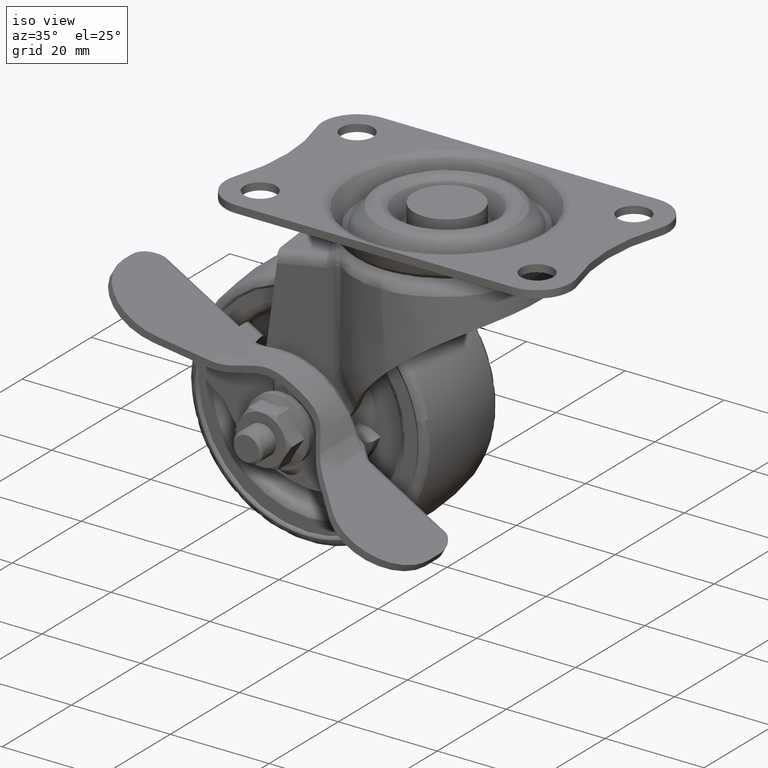
[diagram: clean part render]
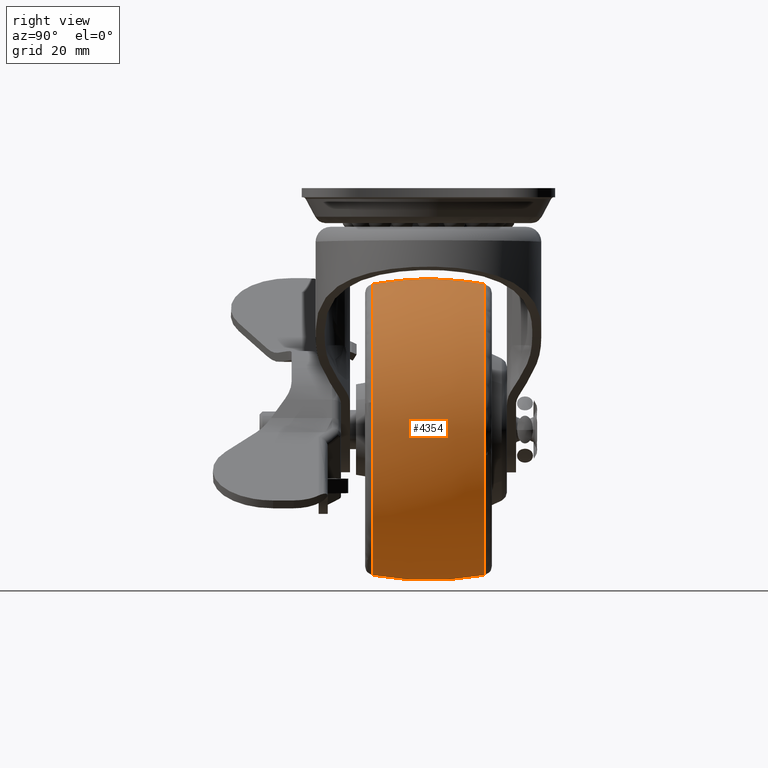
[diagram: tour spotlight — one face highlighted and labeled with its STEP entity id]
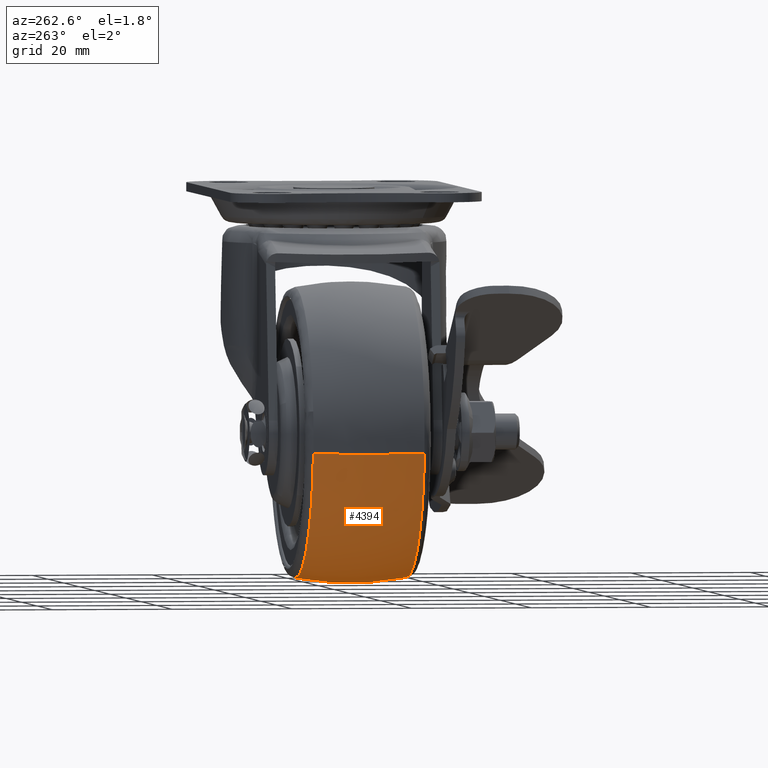
[diagram: tour spotlight — one face highlighted and labeled with its STEP entity id]
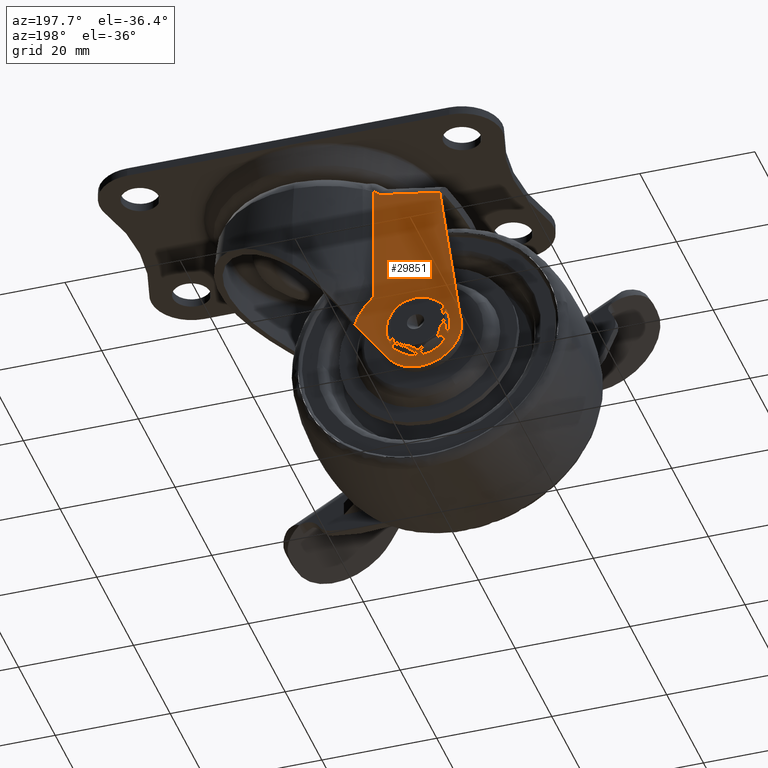
[diagram: tour spotlight — one face highlighted and labeled with its STEP entity id]
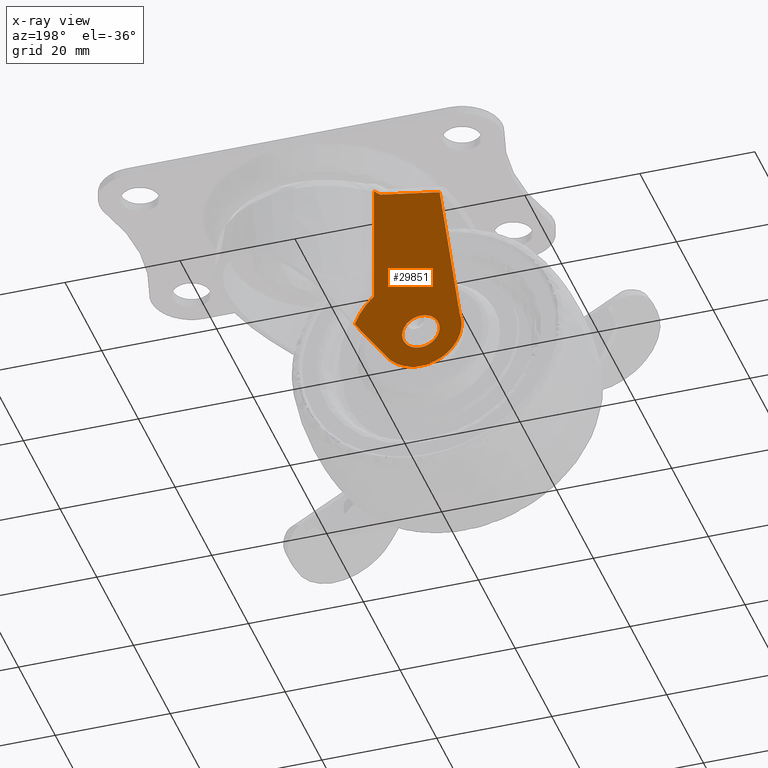
[diagram: x-ray of the same camera — body ghosted, this tour face saturated]
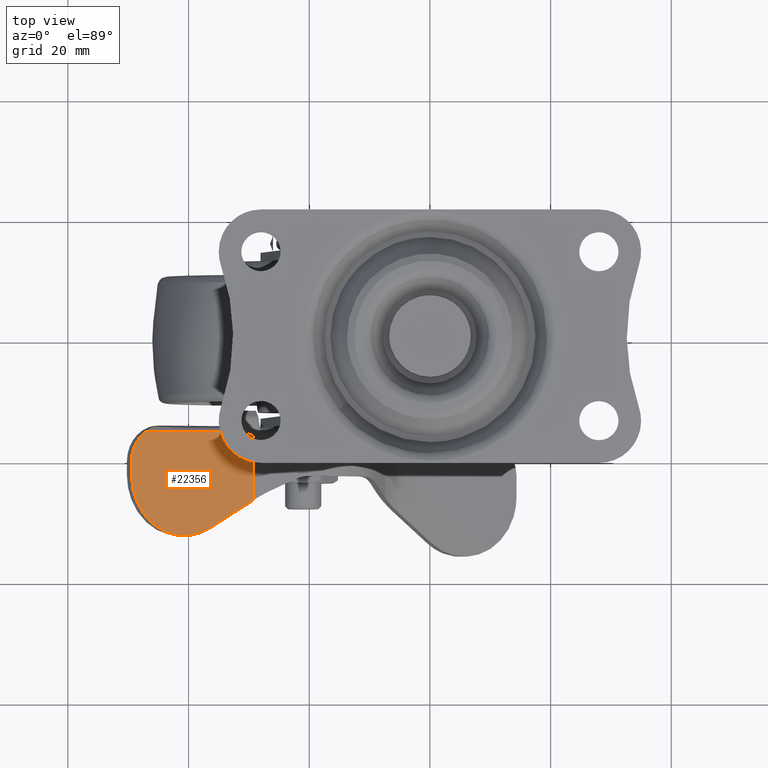
[diagram: tour spotlight — one face highlighted and labeled with its STEP entity id]
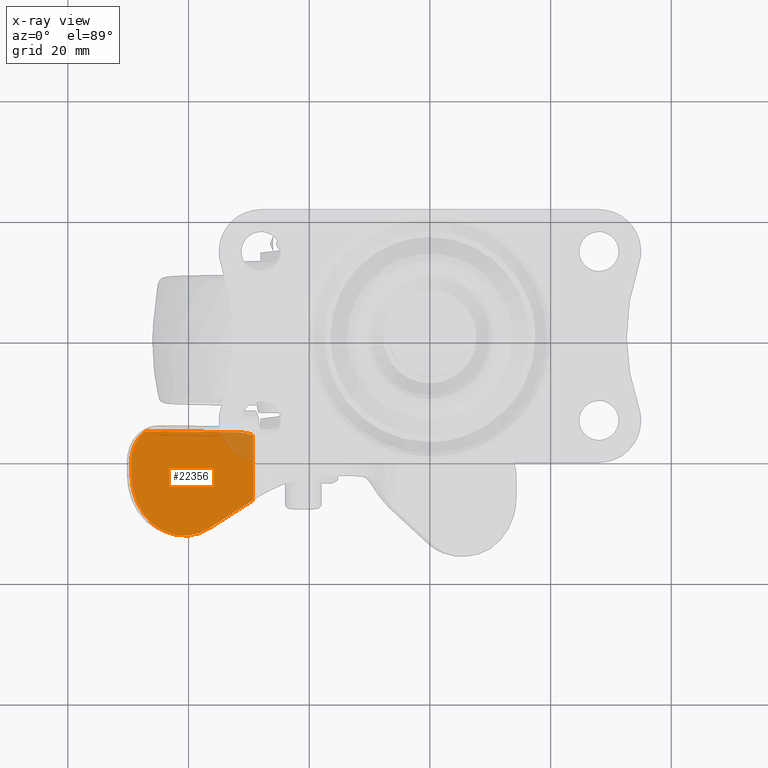
[diagram: x-ray of the same camera — body ghosted, this tour face saturated]
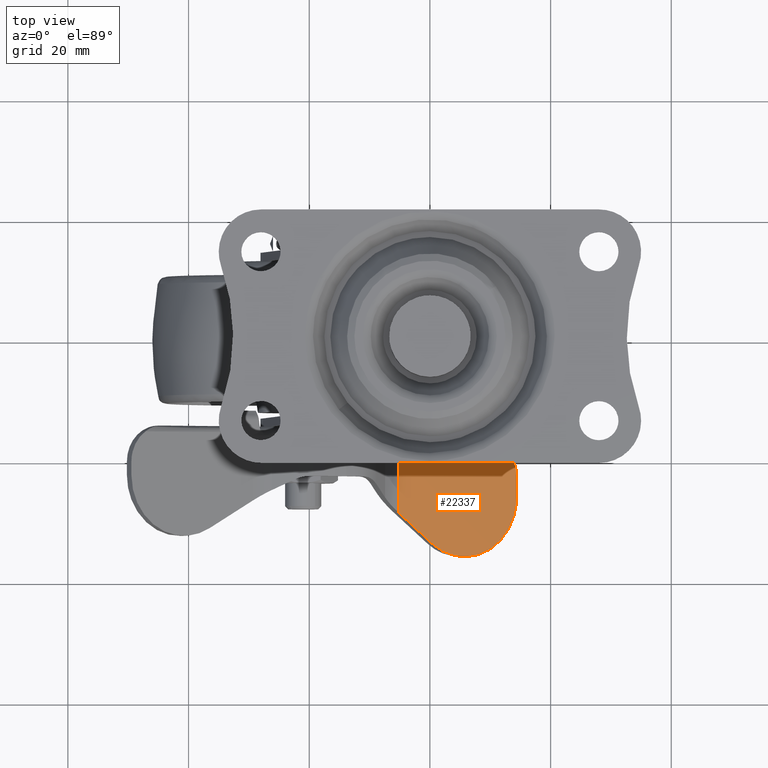
[diagram: tour spotlight — one face highlighted and labeled with its STEP entity id]
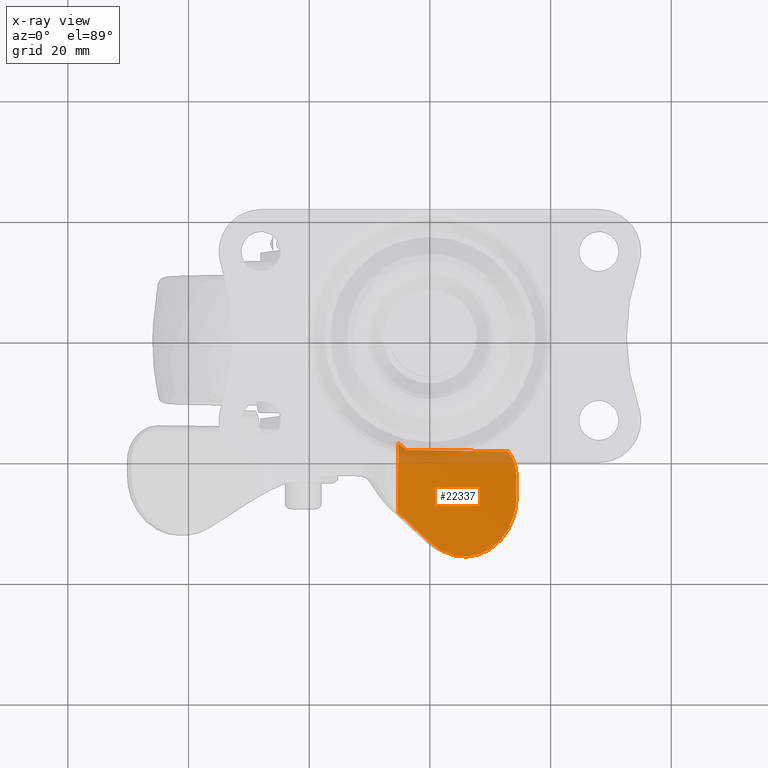
[diagram: x-ray of the same camera — body ghosted, this tour face saturated]
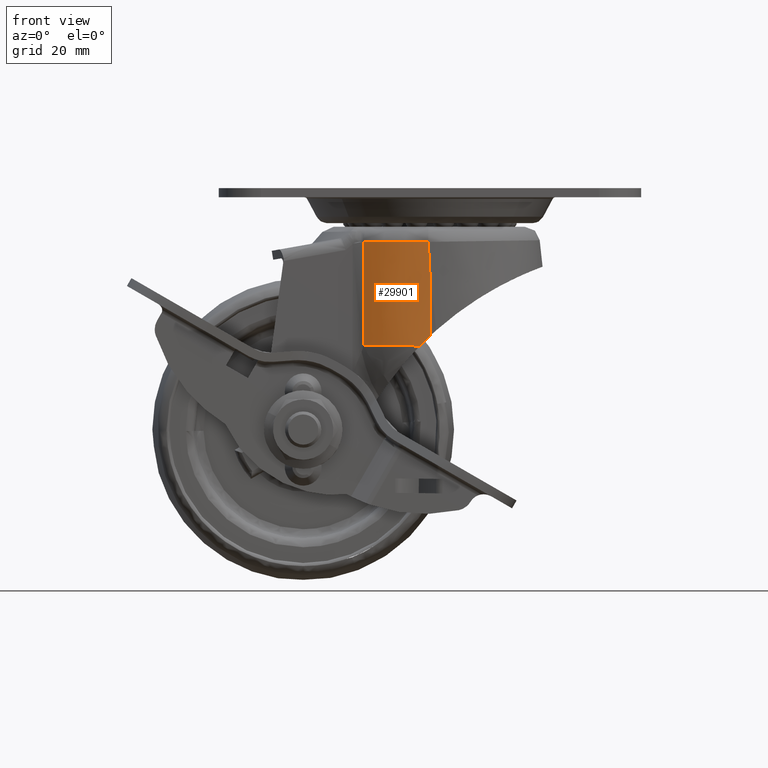
[diagram: tour spotlight — one face highlighted and labeled with its STEP entity id]
A machine part: a face-by-face anatomy tour. The part has 524 B-rep faces; the first image is the clean iso view, then the 6 largest visible faces are spotlighted one at a time (largest first), each with its STEP entity span.

Face 1 — right view, entity #4354. In plain terms, the highlighted face is a freeform B-spline surface patch.
Definition (entity closure, byte-faithful):
#3337=CARTESIAN_POINT('',(2.704144052375738,-9.278349222293961,-33.978192687146048));
#3338=VERTEX_POINT('',#3337);
#3350=CARTESIAN_POINT('',(-21.0,-9.278350515463950,-14.368419405516850));
#3351=VERTEX_POINT('',#3350);
#3352=CARTESIAN_POINT('',(-21.0,-9.278350515463950,-14.368419405516850));
#3353=CARTESIAN_POINT('',(-20.044467272588388,-9.278350515465275,-14.368399423088331));
#3354=CARTESIAN_POINT('',(-18.003096625656308,-9.278350507457745,-14.489826445423770));
#3355=CARTESIAN_POINT('',(-14.366754580408990,-9.278350462277491,-15.174944596951290));
#3356=CARTESIAN_POINT('',(-10.684020337171580,-9.278350371871333,-16.545874870843811));
#3357=CARTESIAN_POINT('',(-7.418698539687314,-9.278350245146458,-18.467541645621509));
#3358=CARTESIAN_POINT('',(-5.157446204921402,-9.278350128417833,-20.237633096223220));
#3359=CARTESIAN_POINT('',(-3.158633204722226,-9.278350000747919,-22.173628538645019));
#3360=CARTESIAN_POINT('',(-1.472478167787685,-9.278349865462449,-24.225114948850131));
#3361=CARTESIAN_POINT('',(0.074442272997237,-9.278349706013119,-26.643021616561779));
#3362=CARTESIAN_POINT('',(1.615082526464821,-9.278349500176482,-29.764351656796830));
#3363=CARTESIAN_POINT('',(2.387017542734677,-9.278349332026135,-32.314200839632711));
#3364=CARTESIAN_POINT('',(2.704144052375738,-9.278349222293961,-33.978192687146048));
#3365=B_SPLINE_CURVE_WITH_KNOTS('',3,(#3352,#3353,#3354,#3355,#3356,#3357,#3358,#3359,#3360,#3361,#3362,#3363,#3364),.UNSPECIFIED.,.F.,.U.,(4,1,1,1,1,1,1,1,1,1,4),(0.000000056603142,2.866600836168132,6.124151438689776,11.075629142267420,14.593768498494240,17.460337595137378,19.675493739285859,22.933031962942351,25.408763129087770,28.275394851605171,33.357142903078852),.UNSPECIFIED.);
#3366=EDGE_CURVE('',#3351,#3338,#3365,.T.);
#3368=CARTESIAN_POINT('',(-44.970181180100369,-9.278366535203702,-41.286296856043322));
#3369=VERTEX_POINT('',#3368);
#3370=CARTESIAN_POINT('',(-44.970181180100369,-9.278366535203702,-41.286296856043322));
#3371=CARTESIAN_POINT('',(-45.086464678209978,-9.278366237609165,-40.286175053471197));
#3372=CARTESIAN_POINT('',(-45.193586715744793,-9.278365600503241,-38.271355217097970));
#3373=CARTESIAN_POINT('',(-44.994869099337947,-9.278364627695899,-35.517505437287092));
#3374=CARTESIAN_POINT('',(-44.479940986737603,-9.278363540132103,-32.699509196135793));
#3375=CARTESIAN_POINT('',(-43.720637570482992,-9.278362489327154,-30.209870478199019));
#3376=CARTESIAN_POINT('',(-42.469251962491469,-9.278361167201357,-27.341014198379199));
#3377=CARTESIAN_POINT('',(-40.621823530992494,-9.278359589845918,-24.233987171294139));
#3378=CARTESIAN_POINT('',(-38.109967714867047,-9.278357885912769,-21.337287618061300));
#3379=CARTESIAN_POINT('',(-35.263669237798652,-9.278356251634069,-18.948254913957690));
#3380=CARTESIAN_POINT('',(-32.573884114485679,-9.278354888644159,-17.237168954772262));
#3381=CARTESIAN_POINT('',(-29.095402103490080,-9.278353333392124,-15.649177524383481));
#3382=CARTESIAN_POINT('',(-25.239407540766830,-9.278351848357868,-14.608907144700209));
#3383=CARTESIAN_POINT('',(-22.324800655118480,-9.278350907022643,-14.368353657697790));
#3384=CARTESIAN_POINT('',(-21.0,-9.278350515463950,-14.368419405516850));
#3385=B_SPLINE_CURVE_WITH_KNOTS('',3,(#3370,#3371,#3372,#3373,#3374,#3375,#3376,#3377,#3378,#3379,#3380,#3381,#3382,#3383,#3384),.UNSPECIFIED.,.F.,.U.,(4,1,1,1,1,1,1,1,1,1,1,1,4),(0.000000086311957,3.020580328582454,6.041166328599033,8.266850937025851,11.605406034270080,13.831116897752221,17.646573397101012,22.415892262708262,25.277488585883120,28.775026921100210,31.954602780274310,36.723978255879537,40.698395387692841),.UNSPECIFIED.);
#3386=EDGE_CURVE('',#3369,#3351,#3385,.T.);
#3388=CARTESIAN_POINT('',(-21.0,-9.278347266066543,-62.631581208121787));
#3389=VERTEX_POINT('',#3388);
#3405=CARTESIAN_POINT('',(-12.410333541811500,-9.278347376053606,-61.051071810461877));
#3406=VERTEX_POINT('',#3405);
#3407=CARTESIAN_POINT('',(-12.410333541811500,-9.278347376053606,-61.051071810461877));
#3408=CARTESIAN_POINT('',(-13.350718764560080,-9.278347351126699,-61.409270438024848));
#3409=CARTESIAN_POINT('',(-16.151660055491622,-9.278347290530391,-62.280036533482381));
#3410=CARTESIAN_POINT('',(-19.078825273151718,-9.278347266031625,-62.632083184399583));
#3411=CARTESIAN_POINT('',(-21.0,-9.278347266066543,-62.631581208121787));
#3412=B_SPLINE_CURVE_WITH_KNOTS('',3,(#3407,#3408,#3409,#3410,#3411),.UNSPECIFIED.,.F.,.U.,(4,1,4),(4.134744E-009,3.018903499036183,8.782261329976219),.UNSPECIFIED.);
#3413=EDGE_CURVE('',#3406,#3389,#3412,.T.);
#3462=CARTESIAN_POINT('',(2.704144052375738,-9.278349222293961,-33.978192687146048));
#3463=CARTESIAN_POINT('',(3.041317276671661,-9.278349099340632,-35.743931030891659));
#3464=CARTESIAN_POINT('',(3.240404526290693,-9.278348919191775,-38.339226977334881));
#3465=CARTESIAN_POINT('',(2.923418580211030,-9.278348659231574,-42.101055562990943));
#3466=CARTESIAN_POINT('',(2.219897017018396,-9.278348428110574,-45.457240407175178));
#3467=CARTESIAN_POINT('',(1.025352297021724,-9.278348217206050,-48.535161207344487));
#3468=CARTESIAN_POINT('',(-0.534363208944728,-9.278348022923817,-51.383221689933833));
#3469=CARTESIAN_POINT('',(-2.177453048983648,-9.278347864183305,-53.720475943810428));
#3470=CARTESIAN_POINT('',(-4.181991067672958,-9.278347718694384,-55.876428189894263));
#3471=CARTESIAN_POINT('',(-6.445310984672200,-9.278347588272895,-57.822022598447923));
#3472=CARTESIAN_POINT('',(-9.075271696456415,-9.278347471312506,-59.583431417953641));
#3473=CARTESIAN_POINT('',(-11.263080215009010,-9.278347404115918,-60.614157770428157));
#3474=CARTESIAN_POINT('',(-12.410333541811500,-9.278347376053606,-61.051071810461877));
#3475=B_SPLINE_CURVE_WITH_KNOTS('',3,(#3462,#3463,#3464,#3465,#3466,#3467,#3468,#3469,#3470,#3471,#3472,#3473,#3474),.UNSPECIFIED.,.F.,.U.,(4,1,1,1,1,1,1,1,1,1,4),(0.000000057449348,5.392819920410673,7.760407094592630,11.311797131667049,15.652382885799121,17.625294935518419,21.045156031820952,24.201955572156582,26.438013096856729,29.989391261382210,33.672286704211359),.UNSPECIFIED.);
#3476=EDGE_CURVE('',#3338,#3406,#3475,.T.);
#3505=CARTESIAN_POINT('',(2.759096477785932,9.278345521659144,-42.723570209472932));
#3506=VERTEX_POINT('',#3505);
#3507=CARTESIAN_POINT('',(-21.0,9.278342933115724,-62.631582026384251));
#3508=VERTEX_POINT('',#3507);
#3509=CARTESIAN_POINT('',(2.759096477785932,9.278345521659144,-42.723570209472932));
#3510=CARTESIAN_POINT('',(2.414363391703058,9.278345269153899,-44.665541782878442));
#3511=CARTESIAN_POINT('',(1.413533074392419,9.278344846634393,-47.915061175569349));
#3512=CARTESIAN_POINT('',(-1.027440340045892,9.278344276934060,-52.296522531376127));
#3513=CARTESIAN_POINT('',(-3.626735504457496,9.278343872633347,-55.405924140521932));
#3514=CARTESIAN_POINT('',(-6.155656176634087,9.278343589440318,-57.583909454613732));
#3515=CARTESIAN_POINT('',(-8.645681764778603,9.278343365632663,-59.305174435073468));
#3516=CARTESIAN_POINT('',(-11.493853273559990,9.278343173069201,-60.786142926758757));
#3517=CARTESIAN_POINT('',(-14.826534150404211,9.278343027455312,-61.906035372008802));
#3518=CARTESIAN_POINT('',(-17.975844416003959,9.278342949564376,-62.505074421561538));
#3519=CARTESIAN_POINT('',(-19.991948947181509,9.278342933112532,-62.631613506327533));
#3520=CARTESIAN_POINT('',(-21.0,9.278342933115724,-62.631582026384251));
#3521=B_SPLINE_CURVE_WITH_KNOTS('',3,(#3509,#3510,#3511,#3512,#3513,#3514,#3515,#3516,#3517,#3518,#3519,#3520),.UNSPECIFIED.,.F.,.U.,(4,1,1,1,1,1,1,1,1,4),(0.000000057256869,5.916855035315784,10.124428715158871,14.989419822137281,18.013548622610880,20.117323160027070,24.061923449801061,27.612063182291649,30.636251624025370,33.660405015221031),.UNSPECIFIED.);
#3522=EDGE_CURVE('',#3506,#3508,#3521,.T.);
#3524=CARTESIAN_POINT('',(-44.970183330552118,9.278355115245670,-41.286297034111833));
#3525=VERTEX_POINT('',#3524);
#3543=CARTESIAN_POINT('',(-44.759092877287898,9.278354426551987,-34.276417072923678));
#3544=VERTEX_POINT('',#3543);
#3545=CARTESIAN_POINT('',(-44.970183330552118,9.278355115245670,-41.286297034111833));
#3546=CARTESIAN_POINT('',(-45.097203903021153,9.278355022285615,-40.193970872225393));
#3547=CARTESIAN_POINT('',(-45.208446770909049,9.278354807858337,-37.845129806377692));
#3548=CARTESIAN_POINT('',(-44.977310764743102,9.278354563379658,-35.503476536537427));
#3549=CARTESIAN_POINT('',(-44.759092877287898,9.278354426551987,-34.276417072923678));
#3550=B_SPLINE_CURVE_WITH_KNOTS('',3,(#3545,#3546,#3547,#3548,#3549),.UNSPECIFIED.,.F.,.U.,(4,1,4),(1.924371E-009,3.299064269663592,7.037999073451804),.UNSPECIFIED.);
#3551=EDGE_CURVE('',#3525,#3544,#3550,.T.);
#3640=CARTESIAN_POINT('',(-21.0,9.278350515463870,-14.368419405516850));
#3641=VERTEX_POINT('',#3640);
#3642=CARTESIAN_POINT('',(-21.0,9.278350515463870,-14.368419405516850));
#3643=CARTESIAN_POINT('',(-19.188788587890659,9.278350541425967,-14.368088750070360));
#3644=CARTESIAN_POINT('',(-16.444740097442288,9.278350522211465,-14.678850489556190));
#3645=CARTESIAN_POINT('',(-12.855206390980570,9.278350377046300,-15.723488641555150));
#3646=CARTESIAN_POINT('',(-10.325599722272541,9.278350210605790,-16.800656168095131));
#3647=CARTESIAN_POINT('',(-7.408201191073819,9.278349941691349,-18.452093750207300));
#3648=CARTESIAN_POINT('',(-4.624630409048312,9.278349573581481,-20.620717371127611));
#3649=CARTESIAN_POINT('',(-2.208339196485671,9.278349112111359,-23.257755953251539));
#3650=CARTESIAN_POINT('',(-0.335781954438647,9.278348640852641,-25.905500340080170));
#3651=CARTESIAN_POINT('',(1.283697483088194,9.278348087291535,-28.971553195050092));
#3652=CARTESIAN_POINT('',(2.411261280025404,9.278347475123182,-32.311787881297739));
#3653=CARTESIAN_POINT('',(2.999181492593903,9.278346883510952,-35.501713141359403));
#3654=CARTESIAN_POINT('',(3.221366934726062,9.278346257269723,-38.847934748393193));
#3655=CARTESIAN_POINT('',(3.018625339629414,9.278345799801743,-41.264591207978071));
#3656=CARTESIAN_POINT('',(2.759096477785932,9.278345521659144,-42.723570209472932));
#3657=B_SPLINE_CURVE_WITH_KNOTS('',3,(#3642,#3643,#3644,#3645,#3646,#3647,#3648,#3649,#3650,#3651,#3652,#3653,#3654,#3655,#3656),.UNSPECIFIED.,.F.,.U.,(4,1,1,1,1,1,1,1,1,1,1,1,4),(0.000000090873982,5.433541149917254,8.232666424341936,11.196444952601279,13.666264547258949,18.276589631907100,21.734257466979219,24.368687800939171,27.991101870845540,32.107450665927182,34.906578468674773,37.705705199965429,42.151316158055010),.UNSPECIFIED.);
#3658=EDGE_CURVE('',#3641,#3506,#3657,.T.);
#3697=CARTESIAN_POINT('',(-44.759092877287898,9.278354426551987,-34.276417072923678));
#3698=CARTESIAN_POINT('',(-44.513741403454837,9.278354274308228,-32.895524602385159));
#3699=CARTESIAN_POINT('',(-43.884213649116113,9.278353998521810,-30.559113027670879));
#3700=CARTESIAN_POINT('',(-42.580024500858237,9.278353604559316,-27.582612422960729));
#3701=CARTESIAN_POINT('',(-40.923604734118307,9.278353193273935,-24.738198106979709));
#3702=CARTESIAN_POINT('',(-38.630977056956709,9.278352722737312,-21.838551582638111));
#3703=CARTESIAN_POINT('',(-35.699265350758758,9.278352226903154,-19.243002176901811));
#3704=CARTESIAN_POINT('',(-33.040394588185812,9.278351838305378,-17.530919710810409));
#3705=CARTESIAN_POINT('',(-30.449966585172561,9.278351495345460,-16.237339062257458));
#3706=CARTESIAN_POINT('',(-28.054925174739260,9.278351209205100,-15.366547361174311));
#3707=CARTESIAN_POINT('',(-24.769186528500079,9.278350855710263,-14.582315104123690));
#3708=CARTESIAN_POINT('',(-22.534017457321109,9.278350645637087,-14.368233660450670));
#3709=CARTESIAN_POINT('',(-21.0,9.278350515463870,-14.368419405516850));
#3710=B_SPLINE_CURVE_WITH_KNOTS('',3,(#3697,#3698,#3699,#3700,#3701,#3702,#3703,#3704,#3705,#3706,#3707,#3708,#3709),.UNSPECIFIED.,.F.,.U.,(4,1,1,1,1,1,1,1,1,1,4),(0.000000057324932,4.207541843063844,7.231723763356364,9.729960257396712,14.069013187969031,18.276503312447630,21.432193854902280,23.535970624092549,26.954614485566911,29.058391254755811,33.660390050188219),.UNSPECIFIED.);
#3711=EDGE_CURVE('',#3544,#3641,#3710,.T.);
#4274=CARTESIAN_POINT('',(-44.785933881755348,10.211752448262725,-41.264916695423388));
#4275=CARTESIAN_POINT('',(-45.832791040827090,5.160260522515189,-41.386605120659475));
#4276=CARTESIAN_POINT('',(-45.832791040827097,-2.479828E-015,-41.386605120659482));
#4277=CARTESIAN_POINT('',(-45.832791040827097,-5.160265243526086,-41.386605120659496));
#4278=CARTESIAN_POINT('',(-44.785931986447999,-10.211761593851614,-41.264916475109672));
#4279=CARTESIAN_POINT('',(-44.946093939510646,10.211752448262722,-39.887097048787659));
#4280=CARTESIAN_POINT('',(-46.000000000000007,5.160260522515187,-39.948145418091542));
#4281=CARTESIAN_POINT('',(-45.999999999999993,-2.479828E-015,-39.948145418091542));
#4282=CARTESIAN_POINT('',(-45.999999999999993,-5.160265243526085,-39.948145418091535));
#4283=CARTESIAN_POINT('',(-44.946092031441466,-10.211761593851611,-39.887096938261202));
#4284=CARTESIAN_POINT('',(-44.946093939510654,10.211752448262724,-38.500000000000007));
#4285=CARTESIAN_POINT('',(-46.0,5.160260522515188,-38.500000000000000));
#4286=CARTESIAN_POINT('',(-46.0,-2.479828E-015,-38.500000000000000));
#4287=CARTESIAN_POINT('',(-45.999999999999993,-5.160265243526085,-38.500000000000000));
#4288=CARTESIAN_POINT('',(-44.946092031441445,-10.211761593851614,-38.499999999999993));
#4289=CARTESIAN_POINT('',(-44.946093939510646,10.211752448262725,-14.553906060489355));
#4290=CARTESIAN_POINT('',(-45.999999999999993,5.160260522515190,-13.499999999999995));
#4291=CARTESIAN_POINT('',(-46.000000000000007,-2.479828E-015,-13.499999999999995));
#4292=CARTESIAN_POINT('',(-45.999999999999986,-5.160265243526085,-13.499999999999993));
#4293=CARTESIAN_POINT('',(-44.946092031441452,-10.211761593851614,-14.553907968558534));
#4294=CARTESIAN_POINT('',(-20.999999999999993,10.211752448262724,-14.553906060489364));
#4295=CARTESIAN_POINT('',(-20.999999999999993,5.160260522515188,-13.500000000000004));
#4296=CARTESIAN_POINT('',(-21.0,-2.479828E-015,-13.500000000000000));
#4297=CARTESIAN_POINT('',(-21.000000000000004,-5.160265243526085,-13.499999999999996));
#4298=CARTESIAN_POINT('',(-20.999999999999996,-10.211761593851614,-14.553907968558537));
#4299=CARTESIAN_POINT('',(2.946093939510643,10.211752448262725,-14.553906060489355));
#4300=CARTESIAN_POINT('',(4.000000000000002,5.160260522515190,-13.499999999999995));
#4301=CARTESIAN_POINT('',(4.000000000000003,-2.479828E-015,-13.499999999999995));
#4302=CARTESIAN_POINT('',(4.000000000000002,-5.160265243526085,-13.499999999999993));
#4303=CARTESIAN_POINT('',(2.946092031441461,-10.211761593851614,-14.553907968558537));
#4304=CARTESIAN_POINT('',(2.946093939510639,10.211752448262724,-38.500000000000007));
#4305=CARTESIAN_POINT('',(4.000000000000000,5.160260522515188,-38.500000000000000));
#4306=CARTESIAN_POINT('',(4.0,-2.479828E-015,-38.500000000000000));
#4307=CARTESIAN_POINT('',(4.000000000000001,-5.160265243526085,-38.500000000000000));
#4308=CARTESIAN_POINT('',(2.946092031441459,-10.211761593851614,-38.499999999999993));
#4309=CARTESIAN_POINT('',(2.946093939510643,10.211752448262725,-62.446093939510654));
#4310=CARTESIAN_POINT('',(4.000000000000002,5.160260522515190,-63.500000000000000));
#4311=CARTESIAN_POINT('',(4.000000000000003,-2.479828E-015,-63.499999999999993));
#4312=CARTESIAN_POINT('',(4.000000000000002,-5.160265243526085,-63.499999999999986));
#4313=CARTESIAN_POINT('',(2.946092031441461,-10.211761593851614,-62.446092031441466));
#4314=CARTESIAN_POINT('',(-20.999999999999993,10.211752448262724,-62.446093939510654));
#4315=CARTESIAN_POINT('',(-20.999999999999993,5.160260522515188,-63.500000000000000));
#4316=CARTESIAN_POINT('',(-21.0,-2.479828E-015,-63.500000000000000));
#4317=CARTESIAN_POINT('',(-21.000000000000004,-5.160265243526085,-63.500000000000014));
#4318=CARTESIAN_POINT('',(-20.999999999999996,-10.211761593851614,-62.446092031441466));
#4326=(BOUNDED_SURFACE()B_SPLINE_SURFACE(2,2,((#4274,#4279,#4284,#4289,#4294,#4299,#4304,#4309,#4314),(#4275,#4280,#4285,#4290,#4295,#4300,#4305,#4310,#4315),(#4276,#4281,#4286,#4291,#4296,#4301,#4306,#4311,#4316),(#4277,#4282,#4287,#4292,#4297,#4302,#4307,#4312,#4317),(#4278,#4283,#4288,#4293,#4298,#4303,#4308,#4313,#4318)),.UNSPECIFIED.,.F.,.F.,.U.)B_SPLINE_SURFACE_WITH_KNOTS((3,2,3),(3,2,2,2,3),(0.0,10.494146040411801,20.988301423335411),(0.0,3.313707807691299,44.735064045000819,86.156420282310336,127.577776519619900),.UNSPECIFIED.)GEOMETRIC_REPRESENTATION_ITEM()RATIONAL_B_SPLINE_SURFACE(((0.915731130663028,0.934567024633225,0.956990707040041,0.676694618480522,0.956990707040041,0.676694618480522,0.956990707040041,0.676694618480522,0.956990707040041),(0.931136702221372,0.950289477099847,0.973090398668195,0.688078819605801,0.973090398668195,0.688078819605801,0.973090398668195,0.688078819605801,0.973090398668195),(0.956886126402807,0.976568547383107,1.0,0.707106781186548,1.0,0.707106781186548,1.0,0.707106781186548,1.0),(0.931136679297706,0.950289453704659,0.973090374711670,0.688078802665980,0.973090374711670,0.688078802665980,0.973090374711670,0.688078802665980,0.973090374711670),(0.915731103233128,0.934566996639112,0.956990678374247,0.676694598210744,0.956990678374247,0.676694598210744,0.956990678374247,0.676694598210744,0.956990678374247)))REPRESENTATION_ITEM('')SURFACE());
#4327=ORIENTED_EDGE('',*,*,#3386,.T.);
#4328=ORIENTED_EDGE('',*,*,#3366,.T.);
#4329=ORIENTED_EDGE('',*,*,#3476,.T.);
#4330=ORIENTED_EDGE('',*,*,#3413,.T.);
#4331=CARTESIAN_POINT('',(-21.0,9.278342933115724,-62.631582026384251));
#4332=CARTESIAN_POINT('',(-20.999999999999979,5.935045731194198,-63.263526830618758));
#4333=CARTESIAN_POINT('',(-21.0,-0.296722125637143,-63.790721821039902));
#4334=CARTESIAN_POINT('',(-21.000000000000021,-6.508165553398966,-63.154967883020852));
#4335=CARTESIAN_POINT('',(-21.0,-9.278347266066543,-62.631581208121787));
#4336=B_SPLINE_CURVE_WITH_KNOTS('',3,(#4331,#4332,#4333,#4334,#4335),.UNSPECIFIED.,.F.,.U.,(4,1,4),(2.383391E-009,10.207358247921110,18.664901770792831),.UNSPECIFIED.);
#4337=EDGE_CURVE('',#3508,#3389,#4336,.T.);
#4338=ORIENTED_EDGE('',*,*,#4337,.F.);
#4339=ORIENTED_EDGE('',*,*,#3522,.F.);
#4340=ORIENTED_EDGE('',*,*,#3658,.F.);
#4341=ORIENTED_EDGE('',*,*,#3711,.F.);
#4342=ORIENTED_EDGE('',*,*,#3551,.F.);
#4343=CARTESIAN_POINT('',(-44.970183330552118,9.278355115245670,-41.286297034111833));
#4344=CARTESIAN_POINT('',(-45.418297608247940,6.890254651203924,-41.338386606906333));
#4345=CARTESIAN_POINT('',(-45.857584880637340,3.016567504681054,-41.389450119391782));
#4346=CARTESIAN_POINT('',(-45.839561355062848,-3.211006754684513,-41.387355058345683));
#4347=CARTESIAN_POINT('',(-45.400339303551441,-6.985788952596145,-41.336299156882212));
#4348=CARTESIAN_POINT('',(-44.970181180100369,-9.278366535203702,-41.286296856043322));
#4349=B_SPLINE_CURVE_WITH_KNOTS('',3,(#4343,#4344,#4345,#4346,#4347,#4348),.UNSPECIFIED.,.F.,.U.,(4,1,1,4),(2.384066E-009,7.290992935684312,11.665583513691089,18.664933778109859),.UNSPECIFIED.);
#4350=EDGE_CURVE('',#3525,#3369,#4349,.T.);
#4351=ORIENTED_EDGE('',*,*,#4350,.T.);
#4352=EDGE_LOOP('',(#4327,#4328,#4329,#4330,#4338,#4339,#4340,#4341,#4342,#4351));
#4353=FACE_OUTER_BOUND('',#4352,.T.);
#4354=ADVANCED_FACE('',(#4353),#4326,.T.);

Face 2 — auxiliary view, entity #4394. In plain terms, the highlighted face is a freeform B-spline surface patch.
Definition (entity closure, byte-faithful):
#3368=CARTESIAN_POINT('',(-44.970181180100369,-9.278366535203702,-41.286296856043322));
#3369=VERTEX_POINT('',#3368);
#3388=CARTESIAN_POINT('',(-21.0,-9.278347266066543,-62.631581208121787));
#3389=VERTEX_POINT('',#3388);
#3390=CARTESIAN_POINT('',(-21.0,-9.278347266066543,-62.631581208121787));
#3391=CARTESIAN_POINT('',(-22.966019005280678,-9.278348147322358,-62.632098087507373));
#3392=CARTESIAN_POINT('',(-26.349089159906921,-9.278349830354843,-62.215726099827407));
#3393=CARTESIAN_POINT('',(-30.600698901127689,-9.278352322783206,-60.747417036696703));
#3394=CARTESIAN_POINT('',(-34.242167221644848,-9.278354728671197,-58.810692842068299));
#3395=CARTESIAN_POINT('',(-37.117505647954722,-9.278356902290760,-56.595383725690141));
#3396=CARTESIAN_POINT('',(-39.509991526883127,-9.278358984140599,-54.067699875623397));
#3397=CARTESIAN_POINT('',(-41.455997415723481,-9.278360896846664,-51.462281801555832));
#3398=CARTESIAN_POINT('',(-42.964309244895666,-9.278362684538692,-48.678467321310983));
#3399=CARTESIAN_POINT('',(-44.287181606667602,-9.278364680300397,-45.165258978084523));
#3400=CARTESIAN_POINT('',(-44.790883038458233,-9.278365838320092,-42.830425098500463));
#3401=CARTESIAN_POINT('',(-44.970181180100369,-9.278366535203702,-41.286296856043322));
#3402=B_SPLINE_CURVE_WITH_KNOTS('',3,(#3390,#3391,#3392,#3393,#3394,#3395,#3396,#3397,#3398,#3399,#3400,#3401),.UNSPECIFIED.,.F.,.U.,(4,1,1,1,1,1,1,1,1,4),(0.000000063972088,5.897926077595599,10.149951007030451,13.441826177282801,18.242461297432278,20.985693253854489,23.866069417702331,27.980927569032811,30.449852316165931,35.113318340048629),.UNSPECIFIED.);
#3403=EDGE_CURVE('',#3389,#3369,#3402,.T.);
#3507=CARTESIAN_POINT('',(-21.0,9.278342933115724,-62.631582026384251));
#3508=VERTEX_POINT('',#3507);
#3524=CARTESIAN_POINT('',(-44.970183330552118,9.278355115245670,-41.286297034111833));
#3525=VERTEX_POINT('',#3524);
#3526=CARTESIAN_POINT('',(-21.0,9.278342933115724,-62.631582026384251));
#3527=CARTESIAN_POINT('',(-22.234454065571910,9.278343283002512,-62.631659548459382));
#3528=CARTESIAN_POINT('',(-24.246120788836290,9.278343892284129,-62.476855679842551));
#3529=CARTESIAN_POINT('',(-27.205908989642211,9.278344884057518,-61.871411387623162));
#3530=CARTESIAN_POINT('',(-29.646922435483599,9.278345775108395,-61.082439046971182));
#3531=CARTESIAN_POINT('',(-32.150789832073663,9.278346769684902,-59.953902167383291));
#3532=CARTESIAN_POINT('',(-34.401421284457278,9.278347741578644,-58.630852502189263));
#3533=CARTESIAN_POINT('',(-36.779467460007687,9.278348867335600,-56.841311315154996));
#3534=CARTESIAN_POINT('',(-38.852203637778963,9.278349962331845,-54.830782699768427));
#3535=CARTESIAN_POINT('',(-40.971077040644218,9.278351230296462,-52.186798864935263));
#3536=CARTESIAN_POINT('',(-42.800070855948832,9.278352525283010,-49.110232516673612));
#3537=CARTESIAN_POINT('',(-44.271302466685079,9.278353903657441,-45.301542664902762));
#3538=CARTESIAN_POINT('',(-44.811919678259180,9.278354726487635,-42.648752728340042));
#3539=CARTESIAN_POINT('',(-44.970183330552118,9.278355115245670,-41.286297034111833));
#3540=B_SPLINE_CURVE_WITH_KNOTS('',3,(#3526,#3527,#3528,#3529,#3530,#3531,#3532,#3533,#3534,#3535,#3536,#3537,#3538,#3539),.UNSPECIFIED.,.F.,.U.,(4,1,1,1,1,1,1,1,1,1,1,4),(0.000000064004951,3.703349678979595,6.035097754709494,9.052653632362425,11.384397630922750,14.264817857098160,16.870861171409690,20.299884276534350,22.905938329319270,27.020798132446249,30.998481134675121,35.113320212437607),.UNSPECIFIED.);
#3541=EDGE_CURVE('',#3508,#3525,#3540,.T.);
#4331=CARTESIAN_POINT('',(-21.0,9.278342933115724,-62.631582026384251));
#4332=CARTESIAN_POINT('',(-20.999999999999979,5.935045731194198,-63.263526830618758));
#4333=CARTESIAN_POINT('',(-21.0,-0.296722125637143,-63.790721821039902));
#4334=CARTESIAN_POINT('',(-21.000000000000021,-6.508165553398966,-63.154967883020852));
#4335=CARTESIAN_POINT('',(-21.0,-9.278347266066543,-62.631581208121787));
#4336=B_SPLINE_CURVE_WITH_KNOTS('',3,(#4331,#4332,#4333,#4334,#4335),.UNSPECIFIED.,.F.,.U.,(4,1,4),(2.383391E-009,10.207358247921110,18.664901770792831),.UNSPECIFIED.);
#4337=EDGE_CURVE('',#3508,#3389,#4336,.T.);
#4343=CARTESIAN_POINT('',(-44.970183330552118,9.278355115245670,-41.286297034111833));
#4344=CARTESIAN_POINT('',(-45.418297608247940,6.890254651203924,-41.338386606906333));
#4345=CARTESIAN_POINT('',(-45.857584880637340,3.016567504681054,-41.389450119391782));
#4346=CARTESIAN_POINT('',(-45.839561355062848,-3.211006754684513,-41.387355058345683));
#4347=CARTESIAN_POINT('',(-45.400339303551441,-6.985788952596145,-41.336299156882212));
#4348=CARTESIAN_POINT('',(-44.970181180100369,-9.278366535203702,-41.286296856043322));
#4349=B_SPLINE_CURVE_WITH_KNOTS('',3,(#4343,#4344,#4345,#4346,#4347,#4348),.UNSPECIFIED.,.F.,.U.,(4,1,1,4),(2.384066E-009,7.290992935684312,11.665583513691089,18.664933778109859),.UNSPECIFIED.);
#4350=EDGE_CURVE('',#3525,#3369,#4349,.T.);
#4355=CARTESIAN_POINT('',(-20.844639964185873,10.211752448262724,-62.446093939510639));
#4356=CARTESIAN_POINT('',(-20.837802319444485,5.160260522515189,-63.500000000000014));
#4357=CARTESIAN_POINT('',(-20.837802319444503,-2.479828E-015,-63.500000000000028));
#4358=CARTESIAN_POINT('',(-20.837802319444485,-5.160265243526085,-63.500000000000007));
#4359=CARTESIAN_POINT('',(-20.844639976565254,-10.211761593851614,-62.446092031441466));
#4360=CARTESIAN_POINT('',(-20.922215463822084,10.211752448262725,-62.446093939510654));
#4361=CARTESIAN_POINT('',(-20.918792041434383,5.160260522515188,-63.500000000000000));
#4362=CARTESIAN_POINT('',(-20.918792041434383,-2.479828E-015,-63.499999999999986));
#4363=CARTESIAN_POINT('',(-20.918792041434397,-5.160265243526085,-63.500000000000000));
#4364=CARTESIAN_POINT('',(-20.922215470020095,-10.211761593851614,-62.446092031441466));
#4365=CARTESIAN_POINT('',(-42.323797920356597,10.211752448262725,-62.446093939510654));
#4366=CARTESIAN_POINT('',(-43.262292520673590,5.160260522515189,-63.500000000000000));
#4367=CARTESIAN_POINT('',(-43.262292520673590,-2.479828E-015,-63.500000000000014));
#4368=CARTESIAN_POINT('',(-43.262292520673590,-5.160265243526086,-63.500000000000014));
#4369=CARTESIAN_POINT('',(-42.323796221236833,-10.211761593851616,-62.446092031441474));
#4370=CARTESIAN_POINT('',(-44.795323496441974,10.211752448262725,-41.184140046185064));
#4371=CARTESIAN_POINT('',(-45.842593907539246,5.160260522515188,-41.302273361331274));
#4372=CARTESIAN_POINT('',(-45.842593907539232,-2.479828E-015,-41.302273361331260));
#4373=CARTESIAN_POINT('',(-45.842593907539239,-5.160265243526087,-41.302273361331260));
#4374=CARTESIAN_POINT('',(-44.795321600386451,-10.211761593851614,-41.184139832307814));
#4375=CARTESIAN_POINT('',(-44.804691015720060,10.211752448262724,-41.103553478555519));
#4376=CARTESIAN_POINT('',(-45.852373706388420,5.160260522515188,-41.218140049408746));
#4377=CARTESIAN_POINT('',(-45.852373706388427,-2.479828E-015,-41.218140049408738));
#4378=CARTESIAN_POINT('',(-45.852373706388420,-5.160265243526085,-41.218140049408746));
#4379=CARTESIAN_POINT('',(-44.804689118918112,-10.211761593851612,-41.103553271099543));
#4387=(BOUNDED_SURFACE()B_SPLINE_SURFACE(2,2,((#4355,#4360,#4365,#4370,#4375),(#4356,#4361,#4366,#4371,#4376),(#4357,#4362,#4367,#4372,#4377),(#4358,#4363,#4368,#4373,#4378),(#4359,#4364,#4369,#4374,#4379)),.UNSPECIFIED.,.F.,.F.,.U.)B_SPLINE_SURFACE_WITH_KNOTS((3,2,3),(3,1,1,3),(0.0,10.494146040411801,20.988301423335400),(0.0,0.190329457650953,38.256178366239858,38.446551296330497),.UNSPECIFIED.)GEOMETRIC_REPRESENTATION_ITEM()RATIONAL_B_SPLINE_SURFACE(((0.959569433942136,0.958280070491088,0.699118305565283,0.916814435481854,0.917897748159629),(0.975712508131491,0.974401453399843,0.710879745930793,0.932238231745406,0.933339769260602),(1.002694620630195,1.001347310315098,0.730538238691624,0.958018117351995,0.959150116513330),(0.975712484110413,0.974401429411041,0.710879728429635,0.932238208794621,0.933339746282698),(0.959569405199099,0.958280041786673,0.699118284623824,0.916814408019505,0.917897720664830)))REPRESENTATION_ITEM('')SURFACE());
#4388=ORIENTED_EDGE('',*,*,#3403,.T.);
#4389=ORIENTED_EDGE('',*,*,#4350,.F.);
#4390=ORIENTED_EDGE('',*,*,#3541,.F.);
#4391=ORIENTED_EDGE('',*,*,#4337,.T.);
#4392=EDGE_LOOP('',(#4388,#4389,#4390,#4391));
#4393=FACE_OUTER_BOUND('',#4392,.T.);
#4394=ADVANCED_FACE('',(#4393),#4387,.T.);

Face 3 — auxiliary view, entity #29851. An x-ray twin of the same camera follows (body ghosted, this face saturated) — the face is partly hidden behind the body. In plain terms, the highlighted face is a freeform B-spline surface patch.
Definition (entity closure, byte-faithful):
#23482=CARTESIAN_POINT('',(-23.237152122917330,14.500000000000000,-36.142533767471022));
#23483=VERTEX_POINT('',#23482);
#23489=CARTESIAN_POINT('',(-21.0,14.500000000000000,-35.250000000000000));
#23490=VERTEX_POINT('',#23489);
#23491=CARTESIAN_POINT('',(-21.0,14.500000000000000,-35.250000000000000));
#23492=CARTESIAN_POINT('',(-21.437020706463240,14.500000000000020,-35.249513306402712));
#23493=CARTESIAN_POINT('',(-22.259035593085581,14.499999999999980,-35.418580748933721));
#23494=CARTESIAN_POINT('',(-22.957671076284420,14.500000000000030,-35.876896610902143));
#23495=CARTESIAN_POINT('',(-23.237152122917330,14.500000000000000,-36.142533767471022));
#23496=B_SPLINE_CURVE_WITH_KNOTS('',3,(#23491,#23492,#23493,#23494,#23495),.UNSPECIFIED.,.F.,.U.,(4,1,4),(0.000000029990619,1.310863527054126,2.467517040331377),.UNSPECIFIED.);
#23497=EDGE_CURVE('',#23490,#23483,#23496,.T.);
#23499=CARTESIAN_POINT('',(-17.750000000000661,14.500000000000000,-38.499997940924658));
#23500=VERTEX_POINT('',#23499);
#23501=CARTESIAN_POINT('',(-17.750000000000661,14.500000000000000,-38.499997940924658));
#23502=CARTESIAN_POINT('',(-17.749811619585142,14.499999999999980,-38.154315904752892));
#23503=CARTESIAN_POINT('',(-17.839956125974091,14.500000000000041,-37.596077065785479));
#23504=CARTESIAN_POINT('',(-18.153992748748632,14.499999999999959,-36.887741496617728));
#23505=CARTESIAN_POINT('',(-18.523209787061351,14.500000000000030,-36.363496535412132));
#23506=CARTESIAN_POINT('',(-18.987601093455840,14.500000000000000,-35.921363798798303));
#23507=CARTESIAN_POINT('',(-19.597038513578319,14.499999999999890,-35.535362990030833));
#23508=CARTESIAN_POINT('',(-20.282082319542901,14.500000000000229,-35.299679809901718));
#23509=CARTESIAN_POINT('',(-20.787301451594239,14.499999999999780,-35.249996465614622));
#23510=CARTESIAN_POINT('',(-21.0,14.500000000000000,-35.250000000000000));
#23511=B_SPLINE_CURVE_WITH_KNOTS('',3,(#23501,#23502,#23503,#23504,#23505,#23506,#23507,#23508,#23509,#23510),.UNSPECIFIED.,.F.,.U.,(4,1,1,1,1,1,1,4),(0.000000089825707,1.036989920742548,1.675164882729269,2.313321478717688,2.951424228294086,3.589597379244032,4.467090688838354,5.105215008530507),.UNSPECIFIED.);
#23512=EDGE_CURVE('',#23500,#23490,#23511,.T.);
#23514=CARTESIAN_POINT('',(-21.0,14.500000000000000,-41.750000000000000));
#23515=VERTEX_POINT('',#23514);
#23516=CARTESIAN_POINT('',(-21.0,14.500000000000000,-41.750000000000000));
#23517=CARTESIAN_POINT('',(-20.654316973296972,14.500000000000000,-41.750185513770802));
#23518=CARTESIAN_POINT('',(-20.149253662141099,14.500000000000011,-41.668628300353433));
#23519=CARTESIAN_POINT('',(-19.484195831187701,14.500000000000000,-41.393080697038080));
#23520=CARTESIAN_POINT('',(-18.987597584829210,14.500000000000011,-41.078643256675797));
#23521=CARTESIAN_POINT('',(-18.523209795017699,14.499999999999989,-40.636500798428287));
#23522=CARTESIAN_POINT('',(-18.153992816891289,14.500000000000030,-40.112254206063739));
#23523=CARTESIAN_POINT('',(-17.839956035120181,14.499999999999959,-39.403919938332528));
#23524=CARTESIAN_POINT('',(-17.749811210240189,14.500000000000041,-38.845679805192802));
#23525=CARTESIAN_POINT('',(-17.750000000000661,14.500000000000000,-38.499997940924658));
#23526=B_SPLINE_CURVE_WITH_KNOTS('',3,(#23516,#23517,#23518,#23519,#23520,#23521,#23522,#23523,#23524,#23525),.UNSPECIFIED.,.F.,.U.,(4,1,1,1,1,1,1,4),(0.000000087001577,1.036990390056729,1.515618405321990,2.153791847222792,2.791894887792811,3.430051775339042,4.068227027377847,5.105217329646192),.UNSPECIFIED.);
#23527=EDGE_CURVE('',#23515,#23500,#23526,.T.);
#23529=CARTESIAN_POINT('',(-23.481556282979451,14.500000000000000,-40.598661886526571));
#23530=VERTEX_POINT('',#23529);
#23531=CARTESIAN_POINT('',(-23.481556282979451,14.500000000000000,-40.598661886526571));
#23532=CARTESIAN_POINT('',(-23.358106924532692,14.500000000000011,-40.744639138258513));
#23533=CARTESIAN_POINT('',(-23.011979618431340,14.500000000000011,-41.087521717118328));
#23534=CARTESIAN_POINT('',(-22.419721426419500,14.500000000000030,-41.456058911430617));
#23535=CARTESIAN_POINT('',(-21.705881357214452,14.499999999999950,-41.697116837188958));
#23536=CARTESIAN_POINT('',(-21.250011953528698,14.500000000000050,-41.750051879763888));
#23537=CARTESIAN_POINT('',(-21.0,14.500000000000000,-41.750000000000000));
#23538=B_SPLINE_CURVE_WITH_KNOTS('',3,(#23531,#23532,#23533,#23534,#23535,#23536,#23537),.UNSPECIFIED.,.F.,.U.,(4,1,1,1,4),(0.000000054427963,0.573547261051986,1.455906118026838,2.073600946870582,2.823627260252665),.UNSPECIFIED.);
#23539=EDGE_CURVE('',#23530,#23515,#23538,.T.);
#23574=CARTESIAN_POINT('',(-24.249999999999350,14.500000000000000,-38.500002059075328));
#23575=VERTEX_POINT('',#23574);
#23576=CARTESIAN_POINT('',(-24.249999999999350,14.500000000000000,-38.500002059075328));
#23577=CARTESIAN_POINT('',(-24.250200027771630,14.499999999999989,-38.856510844402393));
#23578=CARTESIAN_POINT('',(-24.123568483336999,14.500000000000041,-39.616841939270692));
#23579=CARTESIAN_POINT('',(-23.742764309927448,14.499999999999950,-40.290382801244327));
#23580=CARTESIAN_POINT('',(-23.481556282979451,14.500000000000000,-40.598661886526571));
#23581=B_SPLINE_CURVE_WITH_KNOTS('',3,(#23576,#23577,#23578,#23579,#23580),.UNSPECIFIED.,.F.,.U.,(4,1,4),(0.000000032594241,1.069474268426215,2.281526560046831),.UNSPECIFIED.);
#23582=EDGE_CURVE('',#23575,#23530,#23581,.T.);
#23584=CARTESIAN_POINT('',(-23.237152122917330,14.500000000000000,-36.142533767471022));
#23585=CARTESIAN_POINT('',(-23.536447047622090,14.499999999999989,-36.425968828013481));
#23586=CARTESIAN_POINT('',(-23.910398758491780,14.500000000000020,-36.949459070399783));
#23587=CARTESIAN_POINT('',(-24.196414626673480,14.499999999999950,-37.785674580088681));
#23588=CARTESIAN_POINT('',(-24.250053379648900,14.500000000000050,-38.252717709581667));
#23589=CARTESIAN_POINT('',(-24.249999999999350,14.500000000000000,-38.500002059075328));
#23590=B_SPLINE_CURVE_WITH_KNOTS('',3,(#23584,#23585,#23586,#23587,#23588,#23589),.UNSPECIFIED.,.F.,.U.,(4,1,1,4),(0.000000023111288,1.236422972832812,1.895847706100137,2.637701209817980),.UNSPECIFIED.);
#23591=EDGE_CURVE('',#23483,#23575,#23590,.T.);
#25655=CARTESIAN_POINT('',(-13.909461635692720,14.500000000000000,-8.738729798219460));
#25656=VERTEX_POINT('',#25655);
#26376=CARTESIAN_POINT('',(-12.831211945876300,14.500000000000000,-7.796692478680970));
#26377=VERTEX_POINT('',#26376);
#26436=CARTESIAN_POINT('',(-13.909461635692720,14.500000000000000,-8.738729798219460));
#26437=CARTESIAN_POINT('',(-13.552813942389260,14.500000000000000,-8.421568925683056));
#26438=CARTESIAN_POINT('',(-13.193376419640771,14.499999999999989,-8.107538170077728));
#26439=CARTESIAN_POINT('',(-12.831211945876300,14.500000000000000,-7.796692478680970));
#26440=B_SPLINE_CURVE_WITH_KNOTS('',3,(#26436,#26437,#26438,#26439),.UNSPECIFIED.,.F.,.U.,(4,4),(5.541567E-012,1.431821475806155),.UNSPECIFIED.);
#26441=EDGE_CURVE('',#25656,#26377,#26440,.T.);
#26471=CARTESIAN_POINT('',(-24.272970847905949,14.500000000000000,-10.566091914837919));
#26472=VERTEX_POINT('',#26471);
#26473=CARTESIAN_POINT('',(-24.272970847905949,14.500000000000000,-10.566091914837919));
#26474=CARTESIAN_POINT('',(-13.909461635692720,14.500000000000000,-8.738729798219460));
#26475=QUASI_UNIFORM_CURVE('',1,(#26473,#26474),.UNSPECIFIED.,.F.,.U.);
#26476=EDGE_CURVE('',#26472,#25656,#26475,.T.);
#27080=CARTESIAN_POINT('',(-9.489190870771072,14.500000000000000,-34.469180644386050));
#27081=VERTEX_POINT('',#27080);
#27136=CARTESIAN_POINT('',(-14.795892058501240,14.500000000000000,-41.952386660016202));
#27137=VERTEX_POINT('',#27136);
#27143=CARTESIAN_POINT('',(-9.489190870771072,14.500000000000000,-34.469180644386050));
#27144=CARTESIAN_POINT('',(-14.795892058501240,14.500000000000000,-41.952386660016202));
#27145=QUASI_UNIFORM_CURVE('',1,(#27143,#27144),.UNSPECIFIED.,.F.,.U.);
#27146=EDGE_CURVE('',#27081,#27137,#27145,.T.);
#27320=CARTESIAN_POINT('',(-27.754218171713600,14.500000000000000,-36.311286704724047));
#27321=VERTEX_POINT('',#27320);
#27322=CARTESIAN_POINT('',(-27.754218171713600,14.500000000000000,-36.311286704724047));
#27323=CARTESIAN_POINT('',(-27.972953185431759,14.499999999999959,-36.985107742593883));
#27324=CARTESIAN_POINT('',(-28.160939933047100,14.500000000000030,-38.126858388239469));
#27325=CARTESIAN_POINT('',(-28.043531641456141,14.499999999999980,-39.627176094892633));
#27326=CARTESIAN_POINT('',(-27.718903468367920,14.499999999999950,-40.926051643100941));
#27327=CARTESIAN_POINT('',(-27.164191936560130,14.500000000000000,-42.119974081879008));
#27328=CARTESIAN_POINT('',(-26.367715541793071,14.499999999999920,-43.197640081706190));
#27329=CARTESIAN_POINT('',(-25.344869102689518,14.500000000000099,-44.184706464417552));
#27330=CARTESIAN_POINT('',(-24.059695365781199,14.499999999999760,-44.980597280763739));
#27331=CARTESIAN_POINT('',(-22.628812701967050,14.499999999999920,-45.452196797655724));
#27332=CARTESIAN_POINT('',(-21.355675984397379,14.500000000000380,-45.624192794016267));
#27333=CARTESIAN_POINT('',(-20.207684079572520,14.499999999999110,-45.586705479417773));
#27334=CARTESIAN_POINT('',(-19.108431553389220,14.500000000000840,-45.370923109070972));
#27335=CARTESIAN_POINT('',(-17.976418652201868,14.499999999999510,-44.966124177365700));
#27336=CARTESIAN_POINT('',(-16.907886260466690,14.500000000000069,-44.351576221861137));
#27337=CARTESIAN_POINT('',(-15.743161509034600,14.500000000000110,-43.358280944484420));
#27338=CARTESIAN_POINT('',(-15.113638561492341,14.499999999999689,-42.523938920205673));
#27339=CARTESIAN_POINT('',(-14.795892058501240,14.500000000000000,-41.952386660016202));
#27340=B_SPLINE_CURVE_WITH_KNOTS('',3,(#27322,#27323,#27324,#27325,#27326,#27327,#27328,#27329,#27330,#27331,#27332,#27333,#27334,#27335,#27336,#27337,#27338,#27339),.UNSPECIFIED.,.F.,.U.,(4,1,1,1,1,1,1,1,1,1,1,1,1,1,1,4),(0.000000366420529,2.125169914969284,3.432975811776409,4.495608780053157,6.130386842195895,7.356491350989053,8.500796215488659,10.380834066565409,11.852049163859871,12.996349070925451,14.222463704400580,15.285062064021080,16.347674110666940,17.818998016313039,18.963297802145249,20.925014137189532),.UNSPECIFIED.);
#27341=EDGE_CURVE('',#27321,#27137,#27340,.T.);
#29379=CARTESIAN_POINT('',(-12.831211945876300,14.500000000000000,-29.443668887792452));
#29380=VERTEX_POINT('',#29379);
#29473=CARTESIAN_POINT('',(-12.831211945876300,14.500000000000000,-29.443668887792452));
#29474=CARTESIAN_POINT('',(-12.312275450655511,14.499999999999989,-29.911677593286200));
#29475=CARTESIAN_POINT('',(-11.311654112712031,14.500000000000041,-30.983832633004379));
#29476=CARTESIAN_POINT('',(-10.207698355332059,14.499999999999901,-32.701474638373327));
#29477=CARTESIAN_POINT('',(-9.678143134107677,14.500000000000041,-33.929559829684429));
#29478=CARTESIAN_POINT('',(-9.489190870771072,14.500000000000000,-34.469180644386050));
#29479=B_SPLINE_CURVE_WITH_KNOTS('',3,(#29473,#29474,#29475,#29476,#29477,#29478),.UNSPECIFIED.,.F.,.U.,(4,1,1,4),(0.000000010206639,2.096415446951574,4.383409395233467,6.098658770507918),.UNSPECIFIED.);
#29480=EDGE_CURVE('',#29380,#27081,#29479,.T.);
#29509=CARTESIAN_POINT('',(-12.831211945876300,14.500000000000000,-7.796692478680970));
#29510=CARTESIAN_POINT('',(-12.831211945876300,14.500000000000000,-29.443668887792452));
#29511=QUASI_UNIFORM_CURVE('',1,(#29509,#29510),.UNSPECIFIED.,.F.,.U.);
#29512=EDGE_CURVE('',#26377,#29380,#29511,.T.);
#29825=CARTESIAN_POINT('',(-29.028312556308940,14.500000000000000,-5.908472608579756));
#29826=CARTESIAN_POINT('',(-29.028312556308940,14.500000000000000,-47.487106989203838));
#29827=CARTESIAN_POINT('',(-8.559642210164752,14.500000000000000,-5.908472608579756));
#29828=CARTESIAN_POINT('',(-8.559642210164752,14.500000000000000,-47.487106989203838));
#29829=B_SPLINE_SURFACE_WITH_KNOTS('',1,1,((#29825,#29827),(#29826,#29828)),.UNSPECIFIED.,.F.,.F.,.U.,(2,2),(2,2),(0.0,41.578634380624081),(0.0,20.468670346144190),.UNSPECIFIED.);
#29830=ORIENTED_EDGE('',*,*,#26476,.T.);
#29831=ORIENTED_EDGE('',*,*,#26441,.T.);
#29832=ORIENTED_EDGE('',*,*,#29512,.T.);
#29833=ORIENTED_EDGE('',*,*,#29480,.T.);
#29834=ORIENTED_EDGE('',*,*,#27146,.T.);
#29835=ORIENTED_EDGE('',*,*,#27341,.F.);
#29836=CARTESIAN_POINT('',(-27.754218171713600,14.500000000000000,-36.311286704724047));
#29837=CARTESIAN_POINT('',(-24.272970847905949,14.500000000000000,-10.566091914837919));
#29838=QUASI_UNIFORM_CURVE('',1,(#29836,#29837),.UNSPECIFIED.,.F.,.U.);
#29839=EDGE_CURVE('',#27321,#26472,#29838,.T.);
#29840=ORIENTED_EDGE('',*,*,#29839,.T.);
#29841=EDGE_LOOP('',(#29830,#29831,#29832,#29833,#29834,#29835,#29840));
#29842=FACE_OUTER_BOUND('',#29841,.T.);
#29843=ORIENTED_EDGE('',*,*,#23527,.T.);
#29844=ORIENTED_EDGE('',*,*,#23512,.T.);
#29845=ORIENTED_EDGE('',*,*,#23497,.T.);
#29846=ORIENTED_EDGE('',*,*,#23591,.T.);
#29847=ORIENTED_EDGE('',*,*,#23582,.T.);
#29848=ORIENTED_EDGE('',*,*,#23539,.T.);
#29849=EDGE_LOOP('',(#29843,#29844,#29845,#29846,#29847,#29848));
#29850=FACE_BOUND('',#29849,.T.);
#29851=ADVANCED_FACE('',(#29842,#29850),#29829,.F.);

Face 4 — top view, entity #22356. An x-ray twin of the same camera follows (body ghosted, this face saturated) — the face is partly hidden behind the body. In plain terms, the highlighted face is a freeform B-spline surface patch.
Definition (entity closure, byte-faithful):
#18612=CARTESIAN_POINT('',(-55.516617800377702,-15.500019999999999,-30.999947124234751));
#18613=VERTEX_POINT('',#18612);
#18640=CARTESIAN_POINT('',(-37.498058059189347,-15.500019999999999,-30.999975953930349));
#18641=VERTEX_POINT('',#18640);
#18642=CARTESIAN_POINT('',(-37.498058059189347,-15.500019999999999,-30.999975953930349));
#18643=CARTESIAN_POINT('',(-55.516617800377702,-15.500019999999999,-30.999947124234751));
#18644=QUASI_UNIFORM_CURVE('',1,(#18642,#18643),.UNSPECIFIED.,.F.,.U.);
#18645=EDGE_CURVE('',#18641,#18613,#18644,.T.);
#18736=CARTESIAN_POINT('',(-34.899986106493849,-16.000019999999999,-30.999978137012949));
#18737=VERTEX_POINT('',#18736);
#18738=CARTESIAN_POINT('',(-34.899986106493849,-16.000019999999999,-30.999978137012949));
#18739=CARTESIAN_POINT('',(-34.926479821721927,-15.992288652861530,-30.999978115122239));
#18740=CARTESIAN_POINT('',(-34.953221223216723,-15.985195942614940,-30.999978092926661));
#18741=CARTESIAN_POINT('',(-35.006514387577234,-15.970456456125669,-30.999978048778079));
#18742=CARTESIAN_POINT('',(-35.033159760875009,-15.963081814573849,-30.999978026705520));
#18743=CARTESIAN_POINT('',(-35.113104012758043,-15.940990840171480,-30.999977960476169));
#18744=CARTESIAN_POINT('',(-35.166409736426623,-15.926302243119670,-30.999977916309518));
#18745=CARTESIAN_POINT('',(-35.326392269351473,-15.882501293886440,-30.999977783715540));
#18746=CARTESIAN_POINT('',(-35.433133475095559,-15.853649871767360,-30.999977695195550));
#18747=CARTESIAN_POINT('',(-35.753888450231528,-15.769248630452539,-30.999977428871141));
#18748=CARTESIAN_POINT('',(-35.968420019670802,-15.715796900814160,-30.999977250321759));
#18749=CARTESIAN_POINT('',(-36.400524387001823,-15.621216286407231,-30.999976888847680));
#18750=CARTESIAN_POINT('',(-36.618438307470292,-15.579962700383209,-30.999976705644649));
#18751=CARTESIAN_POINT('',(-36.946690552793079,-15.534683162562800,-30.999976427301380));
#18752=CARTESIAN_POINT('',(-37.056398828449389,-15.522362579305220,-30.999976333877079));
#18753=CARTESIAN_POINT('',(-37.276583603907959,-15.505044424506890,-30.999976145329679));
#18754=CARTESIAN_POINT('',(-37.387057286686577,-15.500019999999999,-30.999976050212808));
#18755=CARTESIAN_POINT('',(-37.498058059189347,-15.500019999999999,-30.999975953930349));
#18756=B_SPLINE_CURVE_WITH_KNOTS('',3,(#18738,#18739,#18740,#18741,#18742,#18743,#18744,#18745,#18746,#18747,#18748,#18749,#18750,#18751,#18752,#18753,#18754,#18755),.UNSPECIFIED.,.F.,.U.,(4,2,2,2,2,2,2,2,4),(0.0,0.031250000000006,0.062500000000011,0.125000000000015,0.250000000000015,0.500000000000007,0.750000000000000,0.875000000000000,1.0),.UNSPECIFIED.);
#18757=EDGE_CURVE('',#18737,#18641,#18756,.T.);
#21049=CARTESIAN_POINT('',(-58.199993010026503,-20.500019999999999,-30.999942830834499));
#21050=VERTEX_POINT('',#21049);
#21051=CARTESIAN_POINT('',(-55.516617800377702,-15.500019999999999,-30.999947124234751));
#21052=CARTESIAN_POINT('',(-55.952845848140463,-15.789173218391090,-30.999946426269862));
#21053=CARTESIAN_POINT('',(-56.608209744815547,-16.360368164654599,-30.999945377687670));
#21054=CARTESIAN_POINT('',(-57.437241405365732,-17.476464479628220,-30.999944051237051));
#21055=CARTESIAN_POINT('',(-58.036638274053502,-18.806981167055049,-30.999943092201789));
#21056=CARTESIAN_POINT('',(-58.200231780141053,-19.915080467215532,-30.999942830452600));
#21057=CARTESIAN_POINT('',(-58.199993010026503,-20.500019999999999,-30.999942830834499));
#21058=B_SPLINE_CURVE_WITH_KNOTS('',3,(#21051,#21052,#21053,#21054,#21055,#21056,#21057),.UNSPECIFIED.,.F.,.U.,(4,1,1,1,4),(0.000000053347369,1.570036828332003,2.585960723708048,4.155970857052699,5.910723044053050),.UNSPECIFIED.);
#21059=EDGE_CURVE('',#18613,#21050,#21058,.T.);
#21230=CARTESIAN_POINT('',(-58.199993010026503,-22.751693816939252,-30.999942830834399));
#21231=VERTEX_POINT('',#21230);
#21258=CARTESIAN_POINT('',(-43.298398040442997,-31.468021412558549,-30.999966673386300));
#21259=VERTEX_POINT('',#21258);
#21265=CARTESIAN_POINT('',(-58.199993010026503,-22.751693816939252,-30.999942830834399));
#21266=CARTESIAN_POINT('',(-58.200389644218610,-23.701059173519980,-30.999942830199728));
#21267=CARTESIAN_POINT('',(-57.997573213424317,-25.111223967260781,-30.999943154706180));
#21268=CARTESIAN_POINT('',(-57.309544004491720,-26.972932941702769,-30.999944255552791));
#21269=CARTESIAN_POINT('',(-56.580518401130803,-28.280691242816818,-30.999945421993910));
#21270=CARTESIAN_POINT('',(-55.676642310850497,-29.437656410414551,-30.999946868195480));
#21271=CARTESIAN_POINT('',(-54.470881454392490,-30.614997006463891,-30.999948797412959));
#21272=CARTESIAN_POINT('',(-52.859870232285452,-31.694352966525472,-30.999951375030690));
#21273=CARTESIAN_POINT('',(-50.899127819887212,-32.446911886774970,-30.999954512218778));
#21274=CARTESIAN_POINT('',(-49.101238958943760,-32.757753937283780,-30.999957388840869));
#21275=CARTESIAN_POINT('',(-47.441766334157322,-32.765084399630481,-30.999960043997088));
#21276=CARTESIAN_POINT('',(-45.478752138936763,-32.459948884457958,-30.999963184819759));
#21277=CARTESIAN_POINT('',(-44.102065972255417,-31.920373172068750,-30.999965387517651));
#21278=CARTESIAN_POINT('',(-43.298398040442997,-31.468021412558549,-30.999966673386300));
#21279=B_SPLINE_CURVE_WITH_KNOTS('',3,(#21265,#21266,#21267,#21268,#21269,#21270,#21271,#21272,#21273,#21274,#21275,#21276,#21277,#21278),.UNSPECIFIED.,.F.,.U.,(4,1,1,1,1,1,1,1,1,1,1,4),(0.000000176954927,2.847939468181167,4.231234354465695,5.940029154647879,7.323328893183129,8.625278550745914,10.984960468138590,13.100556675869671,14.890723049070550,16.436773072479880,18.064193645820879,20.830748033172132),.UNSPECIFIED.);
#21280=EDGE_CURVE('',#21231,#21259,#21279,.T.);
#21290=CARTESIAN_POINT('',(-34.899986106493849,-26.745205153492751,-30.999978137012949));
#21291=VERTEX_POINT('',#21290);
#21292=CARTESIAN_POINT('',(-34.899986106493849,-26.745205153492751,-30.999978137012949));
#21293=CARTESIAN_POINT('',(-43.298398040442997,-31.468021412558549,-30.999966673386300));
#21294=QUASI_UNIFORM_CURVE('',1,(#21292,#21293),.UNSPECIFIED.,.F.,.U.);
#21295=EDGE_CURVE('',#21291,#21259,#21294,.T.);
#22209=CARTESIAN_POINT('',(-34.899986106493849,-16.000019999999999,-30.999978137012949));
#22210=CARTESIAN_POINT('',(-34.899986106493849,-26.745205153492751,-30.999978137012949));
#22211=QUASI_UNIFORM_CURVE('',1,(#22209,#22210),.UNSPECIFIED.,.F.,.U.);
#22212=EDGE_CURVE('',#18737,#21291,#22211,.T.);
#22338=CARTESIAN_POINT('',(-59.363828528421656,-33.609802084754591,-30.999940968697690));
#22339=CARTESIAN_POINT('',(-33.736150171465248,-33.609802084754591,-30.999981972982969));
#22340=CARTESIAN_POINT('',(-59.363828528421656,-14.638470338086520,-30.999940968697690));
#22341=CARTESIAN_POINT('',(-33.736150171465248,-14.638470338086520,-30.999981972982969));
#22342=B_SPLINE_SURFACE_WITH_KNOTS('',1,1,((#22338,#22340),(#22339,#22341)),.UNSPECIFIED.,.F.,.F.,.U.,(2,2),(2,2),(0.0,25.627678356989222),(0.0,18.971331746668071),.UNSPECIFIED.);
#22343=ORIENTED_EDGE('',*,*,#22212,.F.);
#22344=ORIENTED_EDGE('',*,*,#18757,.T.);
#22345=ORIENTED_EDGE('',*,*,#18645,.T.);
#22346=ORIENTED_EDGE('',*,*,#21059,.T.);
#22347=CARTESIAN_POINT('',(-58.199993010026503,-20.500019999999999,-30.999942830834499));
#22348=CARTESIAN_POINT('',(-58.199993010026503,-22.751693816939252,-30.999942830834399));
#22349=QUASI_UNIFORM_CURVE('',1,(#22347,#22348),.UNSPECIFIED.,.F.,.U.);
#22350=EDGE_CURVE('',#21050,#21231,#22349,.T.);
#22351=ORIENTED_EDGE('',*,*,#22350,.T.);
#22352=ORIENTED_EDGE('',*,*,#21280,.T.);
#22353=ORIENTED_EDGE('',*,*,#21295,.F.);
#22354=EDGE_LOOP('',(#22343,#22344,#22345,#22346,#22351,#22352,#22353));
#22355=FACE_OUTER_BOUND('',#22354,.T.);
#22356=ADVANCED_FACE('',(#22355),#22342,.T.);

Face 5 — top view, entity #22337. An x-ray twin of the same camera follows (body ghosted, this face saturated) — the face is partly hidden behind the body. In plain terms, the highlighted face is a freeform B-spline surface patch.
Definition (entity closure, byte-faithful):
#19264=CARTESIAN_POINT('',(-7.104958842800755,-17.089322713549979,-31.000012490722430));
#19265=VERTEX_POINT('',#19264);
#19311=CARTESIAN_POINT('',(-5.591046071676140,-18.200001000000050,-31.000015266723800));
#19312=VERTEX_POINT('',#19311);
#19336=CARTESIAN_POINT('',(-5.591046071676140,-18.200001000000050,-31.000015266723800));
#19337=CARTESIAN_POINT('',(-7.104958842800755,-17.089322713549979,-31.000012490722430));
#19338=QUASI_UNIFORM_CURVE('',1,(#19336,#19337),.UNSPECIFIED.,.F.,.U.);
#19339=EDGE_CURVE('',#19312,#19265,#19338,.T.);
#19360=CARTESIAN_POINT('',(13.827020519288840,-18.200001000000000,-31.000052187661101));
#19361=VERTEX_POINT('',#19360);
#19401=CARTESIAN_POINT('',(13.827020519288840,-18.200001000000000,-31.000052187661101));
#19402=CARTESIAN_POINT('',(-5.591046071676140,-18.200001000000050,-31.000015266723800));
#19403=QUASI_UNIFORM_CURVE('',1,(#19401,#19402),.UNSPECIFIED.,.F.,.U.);
#19404=EDGE_CURVE('',#19361,#19312,#19403,.T.);
#21108=CARTESIAN_POINT('',(15.500001301542300,-22.354033037064251,-31.000055368617300));
#21109=VERTEX_POINT('',#21108);
#21110=CARTESIAN_POINT('',(15.500001301542300,-22.354033037064251,-31.000055368617300));
#21111=CARTESIAN_POINT('',(15.500220859226671,-21.780306661388948,-31.000055369034762));
#21112=CARTESIAN_POINT('',(15.375470289567700,-20.919921676907439,-31.000055131837719));
#21113=CARTESIAN_POINT('',(14.836675464367790,-19.483800254400592,-31.000054107389190));
#21114=CARTESIAN_POINT('',(14.291293187204200,-18.682236094979078,-31.000053070415461));
#21115=CARTESIAN_POINT('',(13.827020519288840,-18.200001000000000,-31.000052187661101));
#21116=B_SPLINE_CURVE_WITH_KNOTS('',3,(#21110,#21111,#21112,#21113,#21114,#21115),.UNSPECIFIED.,.F.,.U.,(4,1,1,4),(0.000000037104012,1.721100163958568,2.581629625057555,4.589598779467266),.UNSPECIFIED.);
#21117=EDGE_CURVE('',#21109,#19361,#21116,.T.);
#21158=CARTESIAN_POINT('',(-0.703148404698942,-33.593174927246757,-31.000024560427700));
#21159=VERTEX_POINT('',#21158);
#21188=CARTESIAN_POINT('',(15.500001301542300,-25.749646784761449,-31.000055368617399));
#21189=VERTEX_POINT('',#21188);
#21195=CARTESIAN_POINT('',(-0.703148404698942,-33.593174927246757,-31.000024560427700));
#21196=CARTESIAN_POINT('',(-0.039856116459843,-34.118029845243967,-31.000025821591990));
#21197=CARTESIAN_POINT('',(1.345373694383030,-34.952255571096991,-31.000028455427142));
#21198=CARTESIAN_POINT('',(3.615790860299119,-35.658777926437338,-31.000032772330901));
#21199=CARTESIAN_POINT('',(5.635727605757547,-35.808783737203903,-31.000036612979439));
#21200=CARTESIAN_POINT('',(7.379167257573927,-35.609094641676293,-31.000039927903689));
#21201=CARTESIAN_POINT('',(8.734805335859273,-35.244536969121008,-31.000042505472560));
#21202=CARTESIAN_POINT('',(10.027572513920999,-34.700504187633278,-31.000044963504799));
#21203=CARTESIAN_POINT('',(11.336733825164840,-33.926570110414431,-31.000047452703161));
#21204=CARTESIAN_POINT('',(12.568609708375980,-32.888526551661883,-31.000049794955039));
#21205=CARTESIAN_POINT('',(13.685990896344279,-31.573598901075972,-31.000051919513322));
#21206=CARTESIAN_POINT('',(14.676893215470050,-29.913744549191630,-31.000053803583260));
#21207=CARTESIAN_POINT('',(15.349920019923861,-27.907934959922930,-31.000055083257170));
#21208=CARTESIAN_POINT('',(15.500055303802110,-26.420454929010280,-31.000055368720808));
#21209=CARTESIAN_POINT('',(15.500001301542300,-25.749646784761449,-31.000055368617399));
#21210=B_SPLINE_CURVE_WITH_KNOTS('',3,(#21195,#21196,#21197,#21198,#21199,#21200,#21201,#21202,#21203,#21204,#21205,#21206,#21207,#21208,#21209),.UNSPECIFIED.,.F.,.U.,(4,1,1,1,1,1,1,1,1,1,1,1,4),(0.000000215863292,2.537427582866574,4.812379783410268,7.087356615958411,8.574839940842741,10.062287910044541,11.287171156868270,12.774692581363301,14.612127204119350,16.099614478979600,17.937097702207289,20.387031873692891,22.399476788626920),.UNSPECIFIED.);
#21211=EDGE_CURVE('',#21159,#21189,#21210,.T.);
#21599=CARTESIAN_POINT('',(-7.105072145983550,-28.530135609516350,-31.000012387999401));
#21600=VERTEX_POINT('',#21599);
#21601=CARTESIAN_POINT('',(-0.703148404698942,-33.593174927246757,-31.000024560427700));
#21602=CARTESIAN_POINT('',(-7.105072145983550,-28.530135609516350,-31.000012387999401));
#21603=QUASI_UNIFORM_CURVE('',1,(#21601,#21602),.UNSPECIFIED.,.F.,.U.);
#21604=EDGE_CURVE('',#21159,#21600,#21603,.T.);
#22083=CARTESIAN_POINT('',(-7.104958842800755,-17.089322713549979,-31.000012490722430));
#22084=CARTESIAN_POINT('',(-7.105072145983550,-28.530135609516350,-31.000012387999401));
#22085=QUASI_UNIFORM_CURVE('',1,(#22083,#22084),.UNSPECIFIED.,.F.,.U.);
#22086=EDGE_CURVE('',#19265,#21600,#22085,.T.);
#22319=CARTESIAN_POINT('',(-8.234195440113245,-36.681692317516870,-31.000010241117771));
#22320=CARTESIAN_POINT('',(16.629123585146470,-36.681692317516870,-31.000057515497041));
#22321=CARTESIAN_POINT('',(-8.234195440113245,-16.157242249683801,-31.000010241117771));
#22322=CARTESIAN_POINT('',(16.629123585146470,-16.157242249683801,-31.000057515497041));
#22323=B_SPLINE_SURFACE_WITH_KNOTS('',1,1,((#22319,#22321),(#22320,#22322)),.UNSPECIFIED.,.F.,.F.,.U.,(2,2),(2,2),(0.0,24.863319025304669),(0.0,20.524450067833069),.UNSPECIFIED.);
#22324=ORIENTED_EDGE('',*,*,#19404,.T.);
#22325=ORIENTED_EDGE('',*,*,#19339,.T.);
#22326=ORIENTED_EDGE('',*,*,#22086,.T.);
#22327=ORIENTED_EDGE('',*,*,#21604,.F.);
#22328=ORIENTED_EDGE('',*,*,#21211,.T.);
#22329=CARTESIAN_POINT('',(15.500001301542300,-22.354033037064251,-31.000055368617300));
#22330=CARTESIAN_POINT('',(15.500001301542300,-25.749646784761449,-31.000055368617399));
#22331=QUASI_UNIFORM_CURVE('',1,(#22329,#22330),.UNSPECIFIED.,.F.,.U.);
#22332=EDGE_CURVE('',#21109,#21189,#22331,.T.);
#22333=ORIENTED_EDGE('',*,*,#22332,.F.);
#22334=ORIENTED_EDGE('',*,*,#21117,.T.);
#22335=EDGE_LOOP('',(#22324,#22325,#22326,#22327,#22328,#22333,#22334));
#22336=FACE_OUTER_BOUND('',#22335,.T.);
#22337=ADVANCED_FACE('',(#22336),#22323,.T.);

Face 6 — front view, entity #29901. In plain terms, the highlighted face is a freeform B-spline surface patch.
Definition (entity closure, byte-faithful):
#24982=CARTESIAN_POINT('',(-0.275127299483247,-18.697975439256801,-7.399998799999970));
#24983=VERTEX_POINT('',#24982);
#24984=CARTESIAN_POINT('',(-11.057311676861200,-15.080645161290301,-7.399998799999970));
#24985=VERTEX_POINT('',#24984);
#24986=CARTESIAN_POINT('',(-0.275127299483247,-18.697975439256801,-7.399998799999970));
#24987=CARTESIAN_POINT('',(-1.719484933822450,-18.677059014980699,-7.399998799999998));
#24988=CARTESIAN_POINT('',(-4.062303356212494,-18.368795388197000,-7.399998799999914));
#24989=CARTESIAN_POINT('',(-7.729701344430221,-17.158096112426911,-7.399998800000029));
#24990=CARTESIAN_POINT('',(-9.844071236984238,-15.970694922697881,-7.399998799999909));
#24991=CARTESIAN_POINT('',(-11.057311676861200,-15.080645161290301,-7.399998799999970));
#24992=B_SPLINE_CURVE_WITH_KNOTS('',3,(#24986,#24987,#24988,#24989,#24990,#24991),.UNSPECIFIED.,.F.,.U.,(4,1,1,4),(0.000000010929238,4.333439175636838,7.041832261436278,11.555836567179400),.UNSPECIFIED.);
#24993=EDGE_CURVE('',#24983,#24985,#24992,.T.);
#26795=CARTESIAN_POINT('',(-3.435021E-015,-18.699999999999999,-23.008265631960551));
#26796=VERTEX_POINT('',#26795);
#26804=CARTESIAN_POINT('',(-1.697802496152045,-18.622767428179401,-24.668564954300901));
#26805=VERTEX_POINT('',#26804);
#26806=CARTESIAN_POINT('',(-1.697802496152045,-18.622767428179401,-24.668564954300901));
#26807=CARTESIAN_POINT('',(-1.144689037479479,-18.673783953359649,-24.103759127150141));
#26808=CARTESIAN_POINT('',(-0.578193277591013,-18.699552796796461,-23.549777657088860));
#26809=CARTESIAN_POINT('',(-3.435021E-015,-18.699999999999999,-23.008265631960551));
#26810=B_SPLINE_CURVE_WITH_KNOTS('',3,(#26806,#26807,#26808,#26809),.UNSPECIFIED.,.F.,.U.,(4,4),(1.236966E-010,2.376531029669017),.UNSPECIFIED.);
#26811=EDGE_CURVE('',#26805,#26796,#26810,.T.);
#28816=CARTESIAN_POINT('',(-11.057311676861200,-15.080645161290301,-24.557849696605000));
#28817=VERTEX_POINT('',#28816);
#28989=CARTESIAN_POINT('',(-11.057311676861200,-15.080645161290301,-24.557849696605000));
#28990=CARTESIAN_POINT('',(-9.738483948351821,-16.048267320632561,-24.518441933388580));
#28991=CARTESIAN_POINT('',(-7.403794456662108,-17.326973330607569,-24.499665547031110));
#28992=CARTESIAN_POINT('',(-4.156835781001965,-18.295214343337850,-24.568669007876220));
#28993=CARTESIAN_POINT('',(-2.432902219360789,-18.555886386378980,-24.635058087503680));
#28994=CARTESIAN_POINT('',(-1.697802496152045,-18.622767428179401,-24.668564954300901));
#28995=B_SPLINE_CURVE_WITH_KNOTS('',3,(#28989,#28990,#28991,#28992,#28993,#28994),.UNSPECIFIED.,.F.,.U.,(4,1,1,4),(0.000000010540536,4.908417078169819,7.916782741239707,10.133481085701570),.UNSPECIFIED.);
#28996=EDGE_CURVE('',#28817,#26805,#28995,.T.);
#29569=CARTESIAN_POINT('',(-11.057311676861200,-15.080645161290301,-7.399998799999970));
#29570=CARTESIAN_POINT('',(-11.057311676861200,-15.080645161290301,-24.557849696605000));
#29571=QUASI_UNIFORM_CURVE('',1,(#29569,#29570),.UNSPECIFIED.,.F.,.U.);
#29572=EDGE_CURVE('',#24985,#28817,#29571,.T.);
#29683=CARTESIAN_POINT('',(-5.204170E-015,-18.699998960319299,-12.507347990962760));
#29684=VERTEX_POINT('',#29683);
#29685=CARTESIAN_POINT('',(-5.204170E-015,-18.699998960319299,-12.507347990962760));
#29686=CARTESIAN_POINT('',(-0.137571094916257,-18.699999480159651,-9.953535186344363));
#29687=CARTESIAN_POINT('',(-0.275127299483247,-18.697975439256801,-7.399998799999970));
#29695=(BOUNDED_CURVE()B_SPLINE_CURVE(2,(#29685,#29686,#29687),.UNSPECIFIED.,.F.,.U.)CURVE()GEOMETRIC_REPRESENTATION_ITEM()QUASI_UNIFORM_CURVE()RATIONAL_B_SPLINE_CURVE((1.0,0.999972940260017,1.0))REPRESENTATION_ITEM(''));
#29696=EDGE_CURVE('',#29684,#24983,#29695,.T.);
#29875=CARTESIAN_POINT('',(0.163186213819573,-18.699287961300001,-25.100279108158421));
#29876=CARTESIAN_POINT('',(0.163186213819573,-18.699287961300001,-6.957491792296011));
#29877=CARTESIAN_POINT('',(-6.372851571303676,-18.756327098926164,-25.100279108158418));
#29878=CARTESIAN_POINT('',(-6.372851571303676,-18.756327098926164,-6.957491792296012));
#29879=CARTESIAN_POINT('',(-11.521231026536231,-14.729264599197705,-25.100279108158421));
#29880=CARTESIAN_POINT('',(-11.521231026536231,-14.729264599197705,-6.957491792296011));
#29888=(BOUNDED_SURFACE()B_SPLINE_SURFACE(1,2,((#29875,#29877,#29879),(#29876,#29878,#29880)),.UNSPECIFIED.,.F.,.F.,.U.)B_SPLINE_SURFACE_WITH_KNOTS((2,2),(3,3),(0.0,18.142787315862410),(0.0,12.695950064428480),.UNSPECIFIED.)GEOMETRIC_REPRESENTATION_ITEM()RATIONAL_B_SPLINE_SURFACE(((1.0,0.941945733910734,0.995662128562627),(1.0,0.941945733910734,0.995662128562627)))REPRESENTATION_ITEM('')SURFACE());
#29889=ORIENTED_EDGE('',*,*,#29696,.T.);
#29890=ORIENTED_EDGE('',*,*,#24993,.T.);
#29891=ORIENTED_EDGE('',*,*,#29572,.T.);
#29892=ORIENTED_EDGE('',*,*,#28996,.T.);
#29893=ORIENTED_EDGE('',*,*,#26811,.T.);
#29894=CARTESIAN_POINT('',(-3.435021E-015,-18.699999999999999,-23.008265631960551));
#29895=CARTESIAN_POINT('',(-5.204170E-015,-18.699998960319299,-12.507347990962760));
#29896=QUASI_UNIFORM_CURVE('',1,(#29894,#29895),.UNSPECIFIED.,.F.,.U.);
#29897=EDGE_CURVE('',#26796,#29684,#29896,.T.);
#29898=ORIENTED_EDGE('',*,*,#29897,.T.);
#29899=EDGE_LOOP('',(#29889,#29890,#29891,#29892,#29893,#29898));
#29900=FACE_OUTER_BOUND('',#29899,.T.);
#29901=ADVANCED_FACE('',(#29900),#29888,.T.);